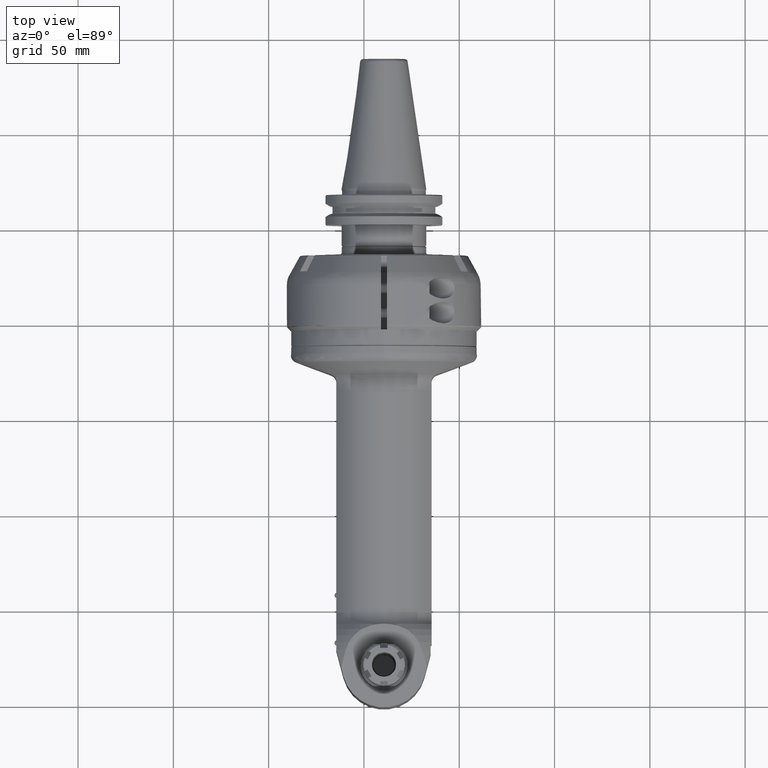
[diagram: clean part render]
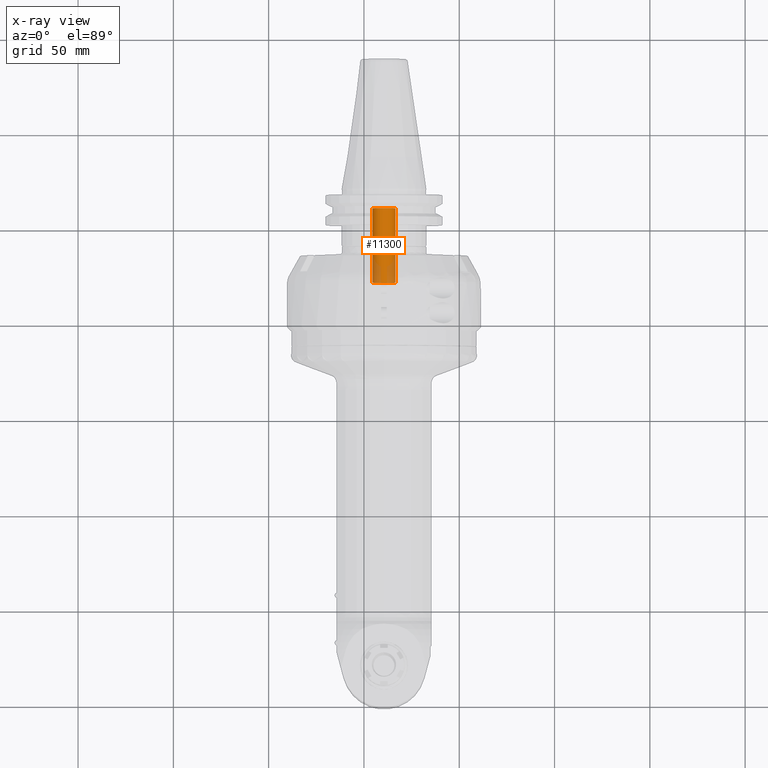
[diagram: x-ray — body ghosted, one internal face saturated and labeled with its STEP entity id]
A machine part, top view, then the same camera in x-ray: the body is ghosted and one INTERNAL B-rep face — a face not visible from any outside direction — is saturated and labeled: STEP entity #11300.
In plain terms, the highlighted cylindrical surface (bore or boss wall) has radius 6 mm, axis along (0, 1, 0).
Its self-contained STEP definition (entity closure, byte-faithful):
#1522=FACE_OUTER_BOUND('',#2276,.T.);
#2276=EDGE_LOOP('',(#10422,#10423,#10424,#10425,#10426));
#3065=LINE('',#22853,#3813);
#3813=VECTOR('',#16033,0.236220472440945);
#4435=CIRCLE('',#12668,0.236220472440945);
#4437=CIRCLE('',#12670,0.236220472440945);
#4438=CIRCLE('',#12673,0.236220472440945);
#5501=VERTEX_POINT('',#22842);
#5502=VERTEX_POINT('',#22843);
#5504=VERTEX_POINT('',#22851);
#7143=EDGE_CURVE('',#5501,#5502,#4435,.T.);
#7146=EDGE_CURVE('',#5502,#5501,#4437,.T.);
#7147=EDGE_CURVE('',#5504,#5504,#4438,.T.);
#7148=EDGE_CURVE('',#5504,#5501,#3065,.T.);
#10422=ORIENTED_EDGE('',*,*,#7147,.T.);
#10423=ORIENTED_EDGE('',*,*,#7148,.T.);
#10424=ORIENTED_EDGE('',*,*,#7146,.F.);
#10425=ORIENTED_EDGE('',*,*,#7143,.F.);
#10426=ORIENTED_EDGE('',*,*,#7148,.F.);
#10648=CYLINDRICAL_SURFACE('',#12672,0.236220472440945);
#11300=ADVANCED_FACE('',(#1522),#10648,.T.);
#12668=AXIS2_PLACEMENT_3D('',#22844,#16020,#16021);
#12670=AXIS2_PLACEMENT_3D('',#22848,#16025,#16026);
#12672=AXIS2_PLACEMENT_3D('',#22850,#16029,#16030);
#12673=AXIS2_PLACEMENT_3D('',#22852,#16031,#16032);
#16020=DIRECTION('center_axis',(0.,-1.,0.));
#16021=DIRECTION('ref_axis',(1.,0.,0.));
#16025=DIRECTION('center_axis',(0.,-1.,0.));
#16026=DIRECTION('ref_axis',(1.,0.,0.));
#16029=DIRECTION('center_axis',(0.,1.,0.));
#16030=DIRECTION('ref_axis',(1.,0.,0.));
#16031=DIRECTION('center_axis',(0.,-1.,0.));
#16032=DIRECTION('ref_axis',(-1.,0.,0.));
#16033=DIRECTION('',(0.,-1.,0.));
#22842=CARTESIAN_POINT('',(-0.236220472440945,0.999015748031496,0.));
#22843=CARTESIAN_POINT('',(2.89286645467951E-17,0.999015748031437,0.236220472441004));
#22844=CARTESIAN_POINT('Origin',(0.,0.999015748031496,0.));
#22848=CARTESIAN_POINT('Origin',(0.,0.999015748031496,0.));
#22850=CARTESIAN_POINT('Origin',(0.,0.862204724409449,0.));
#22851=CARTESIAN_POINT('',(-0.236220472440945,2.53937007874016,2.89286645467879E-17));
#22852=CARTESIAN_POINT('Origin',(0.,2.53937007874016,0.));
#22853=CARTESIAN_POINT('',(-0.236220472440945,0.862204724409449,2.89286645467879E-17));